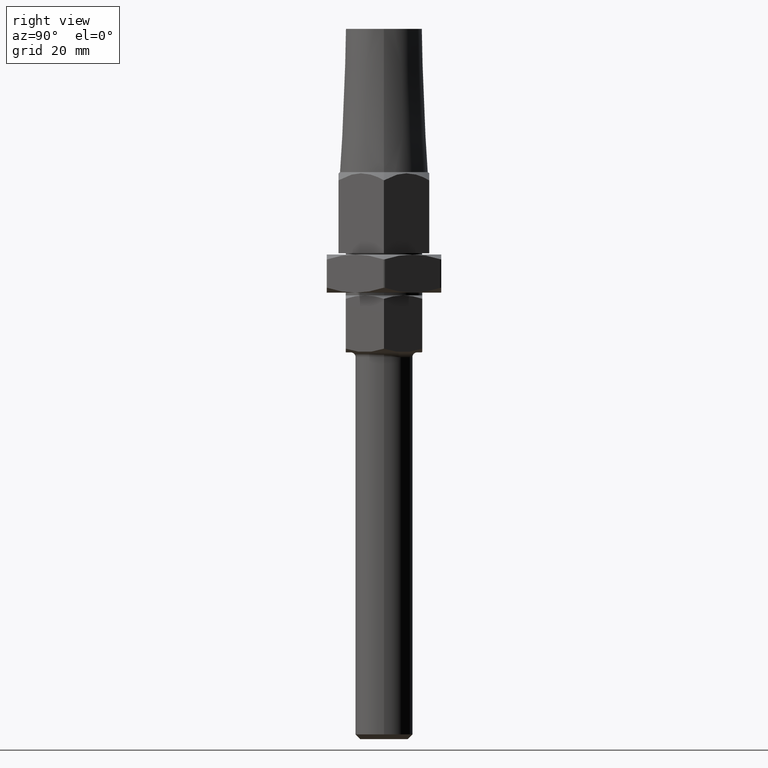
[diagram: clean part render]
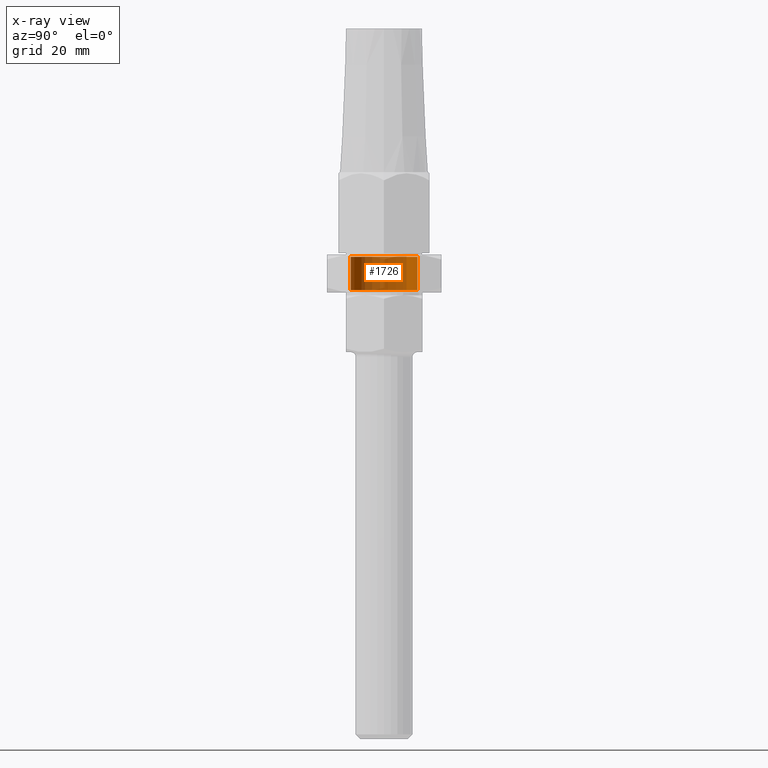
[diagram: x-ray — body ghosted, one internal face saturated and labeled with its STEP entity id]
A machine part, right view, then the same camera in x-ray: the body is ghosted and one INTERNAL B-rep face — a face not visible from any outside direction — is saturated and labeled: STEP entity #1726.
In plain terms, the highlighted cylindrical surface (edge-blend (fillet) strip) has radius 7 mm, axis along (0, 0, -1).
Its self-contained STEP definition (entity closure, byte-faithful):
#689 = VERTEX_POINT ( 'NONE', #16420 ) ;
#850 = CARTESIAN_POINT ( 'NONE',  ( 8.572527594031472200E-016, 4.000000000000000000, -6.999999999999999100 ) ) ;
#1682 = VERTEX_POINT ( 'NONE', #10279 ) ;
#1726 = ADVANCED_FACE ( 'NONE', ( #6036 ), #14888, .F. ) ;
#1996 = ORIENTED_EDGE ( 'NONE', *, *, #6473, .F. ) ;
#2243 = AXIS2_PLACEMENT_3D ( 'NONE', #8341, #9544, #15593 ) ;
#4022 = ORIENTED_EDGE ( 'NONE', *, *, #16802, .T. ) ;
#4060 = DIRECTION ( 'NONE',  ( -0.0000000000000000000, 1.000000000000000000, -0.0000000000000000000 ) ) ;
#4411 = DIRECTION ( 'NONE',  ( 0.0000000000000000000, 0.0000000000000000000, 1.000000000000000000 ) ) ;
#5812 = EDGE_CURVE ( 'NONE', #1682, #689, #12555, .T. ) ;
#6010 = DIRECTION ( 'NONE',  ( -0.0000000000000000000, 1.000000000000000000, -0.0000000000000000000 ) ) ;
#6036 = FACE_OUTER_BOUND ( 'NONE', #17371, .T. ) ;
#6473 = EDGE_CURVE ( 'NONE', #11748, #689, #10706, .T. ) ;
#8335 = CARTESIAN_POINT ( 'NONE',  ( 8.572527594031472200E-016, -3.500000000000004000, -6.999999999999999100 ) ) ;
#8341 = CARTESIAN_POINT ( 'NONE',  ( 0.0000000000000000000, -3.500000000000004000, 0.0000000000000000000 ) ) ;
#8852 = CIRCLE ( 'NONE', #2243, 6.999999999999999100 ) ;
#9034 = CARTESIAN_POINT ( 'NONE',  ( 0.0000000000000000000, -3.500000000000004000, 6.999999999999999100 ) ) ;
#9103 = VECTOR ( 'NONE', #4060, 1000.000000000000000 ) ;
#9134 = DIRECTION ( 'NONE',  ( 0.0000000000000000000, 0.0000000000000000000, 1.000000000000000000 ) ) ;
#9544 = DIRECTION ( 'NONE',  ( -0.0000000000000000000, -1.000000000000000000, -0.0000000000000000000 ) ) ;
#10279 = CARTESIAN_POINT ( 'NONE',  ( 8.572527594031472200E-016, 3.499999999999997800, -6.999999999999999100 ) ) ;
#10319 = AXIS2_PLACEMENT_3D ( 'NONE', #16139, #13045, #4411 ) ;
#10706 = LINE ( 'NONE', #14741, #16573 ) ;
#11307 = AXIS2_PLACEMENT_3D ( 'NONE', #17666, #14867, #9134 ) ;
#11748 = VERTEX_POINT ( 'NONE', #9034 ) ;
#12555 = CIRCLE ( 'NONE', #11307, 6.999999999999999100 ) ;
#12862 = VERTEX_POINT ( 'NONE', #8335 ) ;
#13045 = DIRECTION ( 'NONE',  ( -0.0000000000000000000, 1.000000000000000000, -0.0000000000000000000 ) ) ;
#14741 = CARTESIAN_POINT ( 'NONE',  ( 0.0000000000000000000, 4.000000000000000000, 6.999999999999999100 ) ) ;
#14867 = DIRECTION ( 'NONE',  ( 0.0000000000000000000, 1.000000000000000000, 0.0000000000000000000 ) ) ;
#14888 = CYLINDRICAL_SURFACE ( 'NONE', #10319, 6.999999999999999100 ) ;
#15593 = DIRECTION ( 'NONE',  ( 0.0000000000000000000, 0.0000000000000000000, 1.000000000000000000 ) ) ;
#16139 = CARTESIAN_POINT ( 'NONE',  ( 0.0000000000000000000, 4.000000000000000000, 0.0000000000000000000 ) ) ;
#16420 = CARTESIAN_POINT ( 'NONE',  ( 0.0000000000000000000, 3.499999999999997800, 6.999999999999999100 ) ) ;
#16573 = VECTOR ( 'NONE', #6010, 1000.000000000000000 ) ;
#16802 = EDGE_CURVE ( 'NONE', #12862, #1682, #18534, .T. ) ;
#17371 = EDGE_LOOP ( 'NONE', ( #17694, #4022, #18228, #1996 ) ) ;
#17666 = CARTESIAN_POINT ( 'NONE',  ( 0.0000000000000000000, 3.499999999999997800, 0.0000000000000000000 ) ) ;
#17694 = ORIENTED_EDGE ( 'NONE', *, *, #18489, .T. ) ;
#18228 = ORIENTED_EDGE ( 'NONE', *, *, #5812, .T. ) ;
#18489 = EDGE_CURVE ( 'NONE', #11748, #12862, #8852, .T. ) ;
#18534 = LINE ( 'NONE', #850, #9103 ) ;